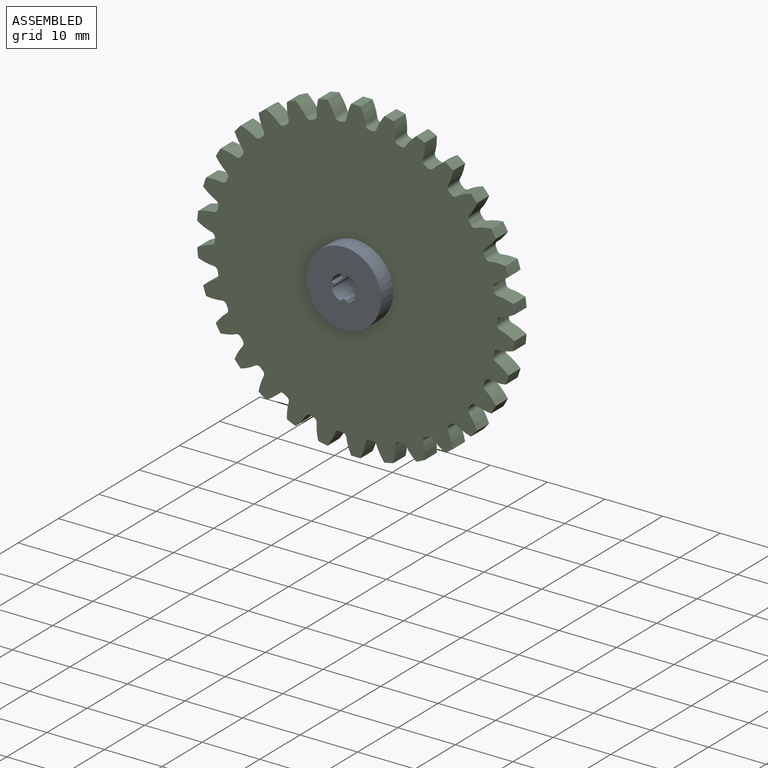
[diagram: assembled view]
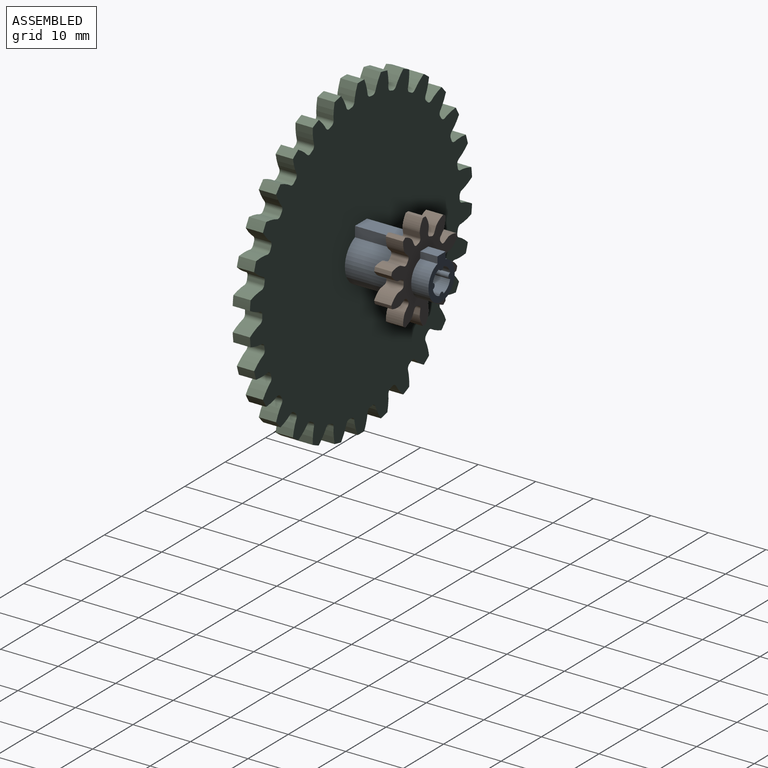
[diagram: assembled view, second angle]
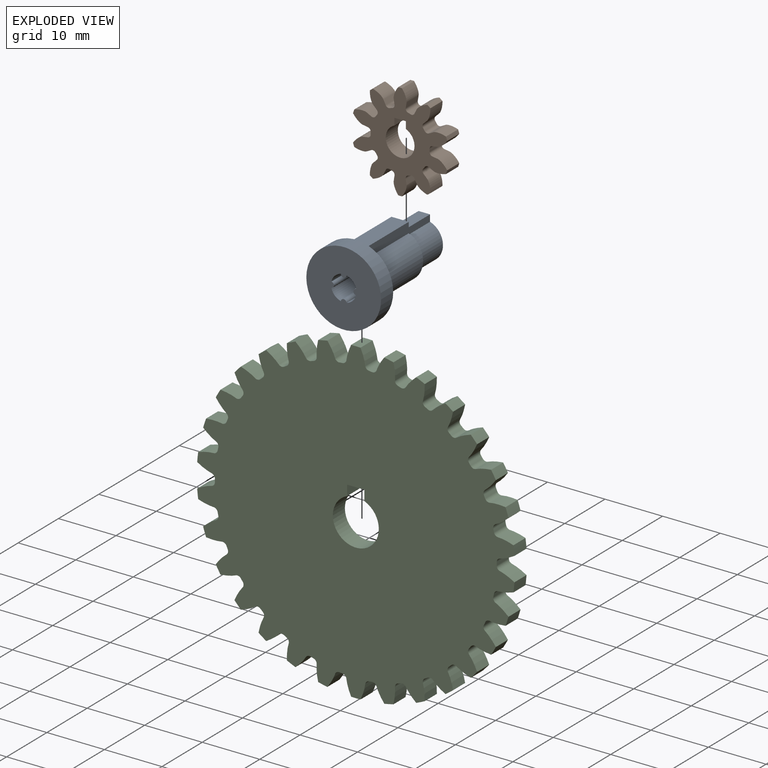
[diagram: exploded view]
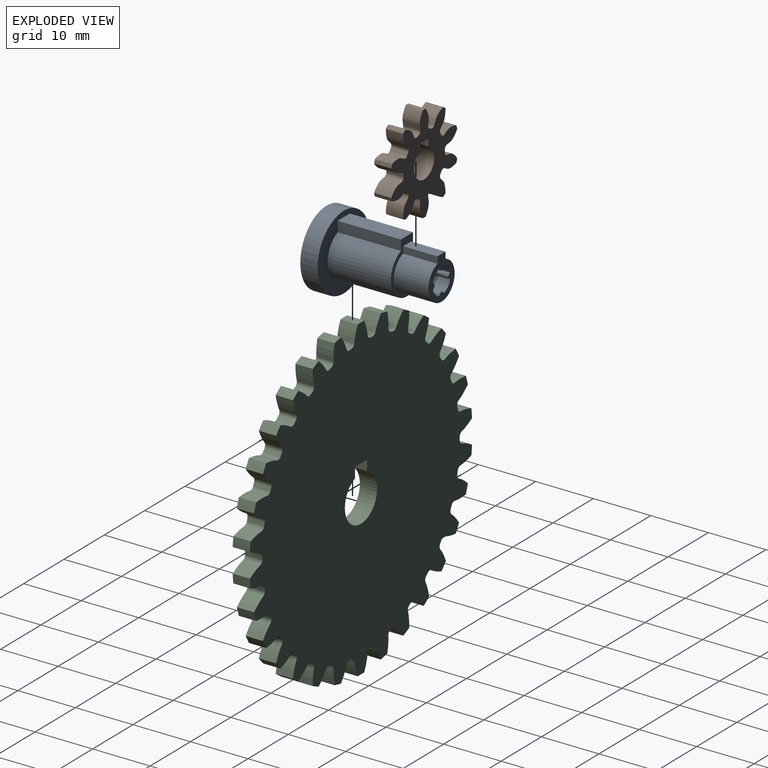
[diagram: exploded view, second angle]
ASSEMBLY  parts=3 mates=2
PART A: 21 faces, bbox 13x13x20 mm
  f0: plane 13x13mm, normal (0,0,1), area 119mm2, adj f8,f13,f14,f15,f16,f17,f18,f19
  f1: plane 7.5x6.5mm, normal (0,0,-1), area 21.6mm2, adj f9,f10,f11,f12,f13,f14,f15,f16
  f2: plane 9.5x8mm, normal (0,0,-1), area 19.8mm2, adj f3,f4,f5,f6,f9,f10,f11,f12
  f3: plane 11x1.79mm, normal (-1,0,0), area 19.7mm2, adj f2,f4,f6,f7
  f4: cylinder r=4mm len=11mm, axis (0,0,-1), area 242.6mm2, adj f2,f3,f5,f7
  f5: plane 11x1.79mm, normal (1,0,0), area 19.7mm2, adj f2,f4,f6,f7
  f6: plane 11x3mm, normal (0,1,0), area 33mm2, adj f2,f3,f5,f7
  f7: plane 13x13mm, normal (0,0,-1), area 77.7mm2, adj f3,f4,f5,f6,f8
  f8: cylinder r=6.5mm len=13mm, axis (0,0,-1), area 122.5mm2, adj f0,f7
  f9: cylinder r=3.25mm len=6.5mm, axis (0,0,1), area 110.3mm2, adj f1,f2,f10,f12
  f10: plane 6x1.16mm, normal (-1,0,0), area 6.9mm2, adj f1,f2,f9,f11
  f11: plane 6x2mm, normal (0,1,0), area 12mm2, adj f1,f2,f10,f12
  f12: plane 6x1.16mm, normal (1,0,0), area 6.9mm2, adj f1,f2,f9,f11
  f13: cylinder r=0.5mm len=20mm, axis (0,0,1), area 29.1mm2, adj f0,f1,f14,f20
  f14: cylinder r=2.2mm len=20mm, axis (0,0,1), area 49.1mm2, adj f0,f1,f13,f15
  f15: cylinder r=0.5mm len=20mm, axis (0,0,1), area 29.1mm2, adj f0,f1,f14,f16
  f16: cylinder r=2.2mm len=20mm, axis (0,0,1), area 49.1mm2, adj f0,f1,f15,f17
  f17: cylinder r=0.5mm len=20mm, axis (0,0,1), area 29.1mm2, adj f0,f1,f16,f18
  f18: cylinder r=2.2mm len=20mm, axis (0,0,1), area 49.1mm2, adj f0,f1,f17,f19
  f19: cylinder r=0.5mm len=20mm, axis (0,0,1), area 29.1mm2, adj f0,f1,f18,f20
  f20: cylinder r=2.2mm len=20mm, axis (0,0,1), area 49.1mm2, adj f0,f1,f13,f19
PART B: 66 faces, bbox 16.4x3x17.1 mm
  f0: cylinder r=8.5mm len=3mm, axis (0,1,0), area 2mm2, adj f9,f15,f56,f63
  f1: cylinder r=8.5mm len=3mm, axis (0,1,0), area 2mm2, adj f9,f15,f16,f58
  f2: cylinder r=8.5mm len=3mm, axis (0,1,0), area 2mm2, adj f9,f15,f46,f53
  f3: cylinder r=8.5mm len=3mm, axis (0,1,0), area 2mm2, adj f9,f15,f48,f61
  f4: cylinder r=8.5mm len=3mm, axis (0,1,0), area 2mm2, adj f9,f15,f36,f43
  f5: cylinder r=8.5mm len=3mm, axis (0,1,0), area 2mm2, adj f9,f15,f31,f38
  f6: cylinder r=8.5mm len=3mm, axis (0,1,0), area 2mm2, adj f9,f15,f26,f33
  f7: cylinder r=8.5mm len=3mm, axis (0,1,0), area 2mm2, adj f9,f15,f28,f51
  f8: cylinder r=8.5mm len=3mm, axis (0,1,0), area 2mm2, adj f9,f15,f23,f41
  f9: plane 17.05x16.43mm, normal (0,-1,0), area 124.3mm2, adj f0,f1,f2,f3,f4,f5,f6,f7
  f10: plane 3x1.21mm, normal (-1,0,0), area 3.6mm2, adj f9,f11,f13,f15
  f11: cylinder r=2.5mm len=5mm, axis (0,1,0), area 41mm2, adj f9,f10,f12,f15
  f12: plane 3x1.21mm, normal (1,0,0), area 3.6mm2, adj f9,f11,f13,f15
  f13: plane 3x2mm, normal (0,0,-1), area 6mm2, adj f9,f10,f12,f15
  f14: cylinder r=8.5mm len=3mm, axis (0,1,0), area 2mm2, adj f9,f15,f18,f21
  f15: plane 17.05x16.43mm, normal (0,1,0), area 124.3mm2, adj f0,f1,f2,f3,f4,f5,f6,f7
  f16: extruded ~3x2.58mm, area 9.3mm2, adj f1,f9,f15,f19
  f17: cylinder r=5.12mm len=3mm, axis (0,1,0), area 1.3mm2, adj f9,f15,f19,f20
  f18: extruded ~3x2.58mm, area 9.3mm2, adj f9,f14,f15,f20
  f19: cylinder r=0.56mm len=3mm, axis (0,1,0), area 2.5mm2, adj f9,f15,f16,f17
  f20: cylinder r=0.56mm len=3mm, axis (0,1,0), area 2.5mm2, adj f9,f15,f17,f18
  f21: extruded ~3x2.97mm, area 9.3mm2, adj f9,f14,f15,f24
  f22: cylinder r=5.12mm len=3mm, axis (0,1,0), area 1.3mm2, adj f9,f15,f24,f25
  f23: extruded ~3x2.73mm, area 9.3mm2, adj f8,f9,f15,f25
  f24: cylinder r=0.56mm len=3mm, axis (0,1,0), area 2.5mm2, adj f9,f15,f21,f22
  f25: cylinder r=0.56mm len=3mm, axis (0,1,0), area 2.5mm2, adj f9,f15,f22,f23
  f26: extruded ~3x2.58mm, area 9.3mm2, adj f6,f9,f15,f29
  f27: cylinder r=5.12mm len=3mm, axis (0,1,0), area 1.3mm2, adj f9,f15,f29,f30
  f28: extruded ~3x2.58mm, area 9.3mm2, adj f7,f9,f15,f30
  f29: cylinder r=0.56mm len=3mm, axis (0,1,0), area 2.5mm2, adj f9,f15,f26,f27
  f30: cylinder r=0.56mm len=3mm, axis (0,1,0), area 2.5mm2, adj f9,f15,f27,f28
  f31: extruded ~3x2.73mm, area 9.3mm2, adj f5,f9,f15,f34
  f32: cylinder r=5.12mm len=3mm, axis (0,1,0), area 1.3mm2, adj f9,f15,f34,f35
  f33: extruded ~3x2.97mm, area 9.3mm2, adj f6,f9,f15,f35
  f34: cylinder r=0.56mm len=3mm, axis (0,1,0), area 2.5mm2, adj f9,f15,f31,f32
  f35: cylinder r=0.56mm len=3mm, axis (0,1,0), area 2.5mm2, adj f9,f15,f32,f33
  f36: extruded ~3x2.92mm, area 9.3mm2, adj f4,f9,f15,f39
  f37: cylinder r=5.12mm len=3mm, axis (0,1,0), area 1.3mm2, adj f9,f15,f39,f40
  f38: extruded ~3x2.23mm, area 9.3mm2, adj f5,f9,f15,f40
  f39: cylinder r=0.56mm len=3mm, axis (0,1,0), area 2.5mm2, adj f9,f15,f36,f37
  f40: cylinder r=0.56mm len=3mm, axis (0,1,0), area 2.5mm2, adj f9,f15,f37,f38
  f41: extruded ~3x2.23mm, area 9.3mm2, adj f8,f9,f15,f44
  f42: cylinder r=5.12mm len=3mm, axis (0,1,0), area 1.3mm2, adj f9,f15,f44,f45
  f43: extruded ~3x2.92mm, area 9.3mm2, adj f4,f9,f15,f45
  f44: cylinder r=0.56mm len=3mm, axis (0,1,0), area 2.5mm2, adj f9,f15,f41,f42
  f45: cylinder r=0.56mm len=3mm, axis (0,1,0), area 2.5mm2, adj f9,f15,f42,f43
  f46: extruded ~3x2.23mm, area 9.3mm2, adj f2,f9,f15,f49
  f47: cylinder r=5.12mm len=3mm, axis (0,1,0), area 1.3mm2, adj f9,f15,f49,f50
  f48: extruded ~3x2.92mm, area 9.3mm2, adj f3,f9,f15,f50
  f49: cylinder r=0.56mm len=3mm, axis (0,1,0), area 2.5mm2, adj f9,f15,f46,f47
  f50: cylinder r=0.56mm len=3mm, axis (0,1,0), area 2.5mm2, adj f9,f15,f47,f48
  f51: extruded ~3x2.97mm, area 9.3mm2, adj f7,f9,f15,f54
  f52: cylinder r=5.12mm len=3mm, axis (0,1,0), area 1.3mm2, adj f9,f15,f54,f55
  f53: extruded ~3x2.73mm, area 9.3mm2, adj f2,f9,f15,f55
  f54: cylinder r=0.56mm len=3mm, axis (0,1,0), area 2.5mm2, adj f9,f15,f51,f52
  f55: cylinder r=0.56mm len=3mm, axis (0,1,0), area 2.5mm2, adj f9,f15,f52,f53
  f56: extruded ~3x2.73mm, area 9.3mm2, adj f0,f9,f15,f59
  f57: cylinder r=5.12mm len=3mm, axis (0,1,0), area 1.3mm2, adj f9,f15,f59,f60
  f58: extruded ~3x2.97mm, area 9.3mm2, adj f1,f9,f15,f60
  f59: cylinder r=0.56mm len=3mm, axis (0,1,0), area 2.5mm2, adj f9,f15,f56,f57
  f60: cylinder r=0.56mm len=3mm, axis (0,1,0), area 2.5mm2, adj f9,f15,f57,f58
  f61: extruded ~3x2.92mm, area 9.3mm2, adj f3,f9,f15,f64
  f62: cylinder r=5.12mm len=3mm, axis (0,1,0), area 1.3mm2, adj f9,f15,f64,f65
  f63: extruded ~3x2.23mm, area 9.3mm2, adj f0,f9,f15,f65
  f64: cylinder r=0.56mm len=3mm, axis (0,1,0), area 2.5mm2, adj f9,f15,f61,f62
  f65: cylinder r=0.56mm len=3mm, axis (0,1,0), area 2.5mm2, adj f9,f15,f62,f63
PART C: 186 faces, bbox 55.1x3x55.3 mm
  f0: cylinder r=27.65mm len=3mm, axis (0,1,0), area 4.9mm2, adj f29,f35,f36,f183
  f1: cylinder r=27.65mm len=3mm, axis (0,1,0), area 4.9mm2, adj f29,f35,f178,f181
  f2: cylinder r=27.65mm len=3mm, axis (0,1,0), area 4.9mm2, adj f29,f35,f166,f173
  f3: cylinder r=27.65mm len=3mm, axis (0,1,0), area 4.9mm2, adj f29,f35,f168,f176
  f4: cylinder r=27.65mm len=3mm, axis (0,1,0), area 4.9mm2, adj f29,f35,f163,f171
  f5: cylinder r=27.65mm len=3mm, axis (0,1,0), area 4.9mm2, adj f29,f35,f158,f161
  f6: cylinder r=27.65mm len=3mm, axis (0,1,0), area 4.9mm2, adj f29,f35,f153,f156
  f7: cylinder r=27.65mm len=3mm, axis (0,1,0), area 4.9mm2, adj f29,f35,f148,f151
  f8: cylinder r=27.65mm len=3mm, axis (0,1,0), area 4.9mm2, adj f29,f35,f143,f146
  f9: cylinder r=27.65mm len=3mm, axis (0,1,0), area 4.9mm2, adj f29,f35,f138,f141
  f10: cylinder r=27.65mm len=3mm, axis (0,1,0), area 4.9mm2, adj f29,f35,f126,f133
  f11: cylinder r=27.65mm len=3mm, axis (0,1,0), area 4.9mm2, adj f29,f35,f128,f136
  f12: cylinder r=27.65mm len=3mm, axis (0,1,0), area 4.9mm2, adj f29,f35,f123,f131
  f13: cylinder r=27.65mm len=3mm, axis (0,1,0), area 4.9mm2, adj f29,f35,f118,f121
  f14: cylinder r=27.65mm len=3mm, axis (0,1,0), area 4.9mm2, adj f29,f35,f113,f116
  f15: cylinder r=27.65mm len=3mm, axis (0,1,0), area 4.9mm2, adj f29,f35,f108,f111
  f16: cylinder r=27.65mm len=3mm, axis (0,1,0), area 4.9mm2, adj f29,f35,f96,f103
  f17: cylinder r=27.65mm len=3mm, axis (0,1,0), area 4.9mm2, adj f29,f35,f91,f98
  f18: cylinder r=27.65mm len=3mm, axis (0,1,0), area 4.9mm2, adj f29,f35,f86,f93
  f19: cylinder r=27.65mm len=3mm, axis (0,1,0), area 4.9mm2, adj f29,f35,f88,f106
  f20: cylinder r=27.65mm len=3mm, axis (0,1,0), area 4.9mm2, adj f29,f35,f83,f101
  f21: cylinder r=27.65mm len=3mm, axis (0,1,0), area 4.9mm2, adj f29,f35,f78,f81
  f22: cylinder r=27.65mm len=3mm, axis (0,1,0), area 4.9mm2, adj f29,f35,f73,f76
  f23: cylinder r=27.65mm len=3mm, axis (0,1,0), area 4.9mm2, adj f29,f35,f68,f71
  f24: cylinder r=27.65mm len=3mm, axis (0,1,0), area 4.9mm2, adj f29,f35,f56,f63
  f25: cylinder r=27.65mm len=3mm, axis (0,1,0), area 4.9mm2, adj f29,f35,f51,f58
  f26: cylinder r=27.65mm len=3mm, axis (0,1,0), area 4.9mm2, adj f29,f35,f46,f53
  f27: cylinder r=27.65mm len=3mm, axis (0,1,0), area 4.9mm2, adj f29,f35,f48,f66
  f28: cylinder r=27.65mm len=3mm, axis (0,1,0), area 4.9mm2, adj f29,f35,f43,f61
  f29: plane 55.3x55.15mm, normal (0,-1,0), area 2093.7mm2, adj f0,f1,f2,f3,f4,f5,f6,f7
  f30: plane 3x1.79mm, normal (-1,0,0), area 5.4mm2, adj f29,f31,f33,f35
  f31: cylinder r=4mm len=8mm, axis (0,1,0), area 66.2mm2, adj f29,f30,f32,f35
  f32: plane 3x1.79mm, normal (1,0,0), area 5.4mm2, adj f29,f31,f33,f35
  f33: plane 3x3mm, normal (0,0,-1), area 9mm2, adj f29,f30,f32,f35
  f34: cylinder r=27.65mm len=3mm, axis (0,1,0), area 4.9mm2, adj f29,f35,f38,f41
  f35: plane 55.3x55.15mm, normal (0,1,0), area 2093.7mm2, adj f0,f1,f2,f3,f4,f5,f6,f7
  f36: extruded ~3x2.51mm, area 8.2mm2, adj f0,f29,f35,f39
  f37: cylinder r=24.5mm len=3mm, axis (0,1,0), area 1.6mm2, adj f29,f35,f39,f40
  f38: extruded ~3x2.51mm, area 8.2mm2, adj f29,f34,f35,f40
  f39: cylinder r=0.73mm len=3mm, axis (0,1,0), area 3mm2, adj f29,f35,f36,f37
  f40: cylinder r=0.73mm len=3mm, axis (0,1,0), area 3mm2, adj f29,f35,f37,f38
  f41: extruded ~3x2.68mm, area 8.2mm2, adj f29,f34,f35,f44
  f42: cylinder r=24.5mm len=3mm, axis (0,1,0), area 1.6mm2, adj f29,f35,f44,f45
  f43: extruded ~3x2.23mm, area 8.2mm2, adj f28,f29,f35,f45
  f44: cylinder r=0.73mm len=3mm, axis (0,1,0), area 3mm2, adj f29,f35,f41,f42
  f45: cylinder r=0.73mm len=3mm, axis (0,1,0), area 3mm2, adj f29,f35,f42,f43
  f46: extruded ~3x2.19mm, area 8.2mm2, adj f26,f29,f35,f49
  f47: cylinder r=24.5mm len=3mm, axis (0,1,0), area 1.6mm2, adj f29,f35,f49,f50
  f48: extruded ~3x2.71mm, area 8.2mm2, adj f27,f29,f35,f50
  f49: cylinder r=0.73mm len=3mm, axis (0,1,0), area 3mm2, adj f29,f35,f46,f47
  f50: cylinder r=0.73mm len=3mm, axis (0,1,0), area 3mm2, adj f29,f35,f47,f48
  f51: extruded ~3x2.48mm, area 8.2mm2, adj f25,f29,f35,f54
  f52: cylinder r=24.5mm len=3mm, axis (0,1,0), area 1.6mm2, adj f29,f35,f54,f55
  f53: extruded ~3x2.59mm, area 8.2mm2, adj f26,f29,f35,f55
  f54: cylinder r=0.73mm len=3mm, axis (0,1,0), area 3mm2, adj f29,f35,f51,f52
  f55: cylinder r=0.73mm len=3mm, axis (0,1,0), area 3mm2, adj f29,f35,f52,f53
  f56: extruded ~3x2.67mm, area 8.2mm2, adj f24,f29,f35,f59
  f57: cylinder r=24.5mm len=3mm, axis (0,1,0), area 1.6mm2, adj f29,f35,f59,f60
  f58: extruded ~3x2.35mm, area 8.2mm2, adj f25,f29,f35,f60
  f59: cylinder r=0.73mm len=3mm, axis (0,1,0), area 3mm2, adj f29,f35,f56,f57
  f60: cylinder r=0.73mm len=3mm, axis (0,1,0), area 3mm2, adj f29,f35,f57,f58
  f61: extruded ~3x2.73mm, area 8.2mm2, adj f28,f29,f35,f64
  f62: cylinder r=24.5mm len=3mm, axis (0,1,0), area 1.6mm2, adj f29,f35,f64,f65
  f63: extruded ~3x2.01mm, area 8.2mm2, adj f24,f29,f35,f65
  f64: cylinder r=0.73mm len=3mm, axis (0,1,0), area 3mm2, adj f29,f35,f61,f62
  f65: cylinder r=0.73mm len=3mm, axis (0,1,0), area 3mm2, adj f29,f35,f62,f63
  f66: extruded ~3x2.05mm, area 8.2mm2, adj f27,f29,f35,f69
  f67: cylinder r=24.5mm len=3mm, axis (0,1,0), area 1.6mm2, adj f29,f35,f69,f70
  f68: extruded ~3x2.72mm, area 8.2mm2, adj f23,f29,f35,f70
  f69: cylinder r=0.73mm len=3mm, axis (0,1,0), area 3mm2, adj f29,f35,f66,f67
  f70: cylinder r=0.73mm len=3mm, axis (0,1,0), area 3mm2, adj f29,f35,f67,f68
  f71: extruded ~3x2.38mm, area 8.2mm2, adj f23,f29,f35,f74
  f72: cylinder r=24.5mm len=3mm, axis (0,1,0), area 1.6mm2, adj f29,f35,f74,f75
  f73: extruded ~3x2.61mm, area 8.2mm2, adj f22,f29,f35,f75
  f74: cylinder r=0.73mm len=3mm, axis (0,1,0), area 3mm2, adj f29,f35,f71,f72
  f75: cylinder r=0.73mm len=3mm, axis (0,1,0), area 3mm2, adj f29,f35,f72,f73
  f76: extruded ~3x2.61mm, area 8.2mm2, adj f22,f29,f35,f79
  f77: cylinder r=24.5mm len=3mm, axis (0,1,0), area 1.6mm2, adj f29,f35,f79,f80
  f78: extruded ~3x2.38mm, area 8.2mm2, adj f21,f29,f35,f80
  f79: cylinder r=0.73mm len=3mm, axis (0,1,0), area 3mm2, adj f29,f35,f76,f77
  f80: cylinder r=0.73mm len=3mm, axis (0,1,0), area 3mm2, adj f29,f35,f77,f78
  f81: extruded ~3x2.72mm, area 8.2mm2, adj f21,f29,f35,f84
  f82: cylinder r=24.5mm len=3mm, axis (0,1,0), area 1.6mm2, adj f29,f35,f84,f85
  f83: extruded ~3x2.05mm, area 8.2mm2, adj f20,f29,f35,f85
  f84: cylinder r=0.73mm len=3mm, axis (0,1,0), area 3mm2, adj f29,f35,f81,f82
  f85: cylinder r=0.73mm len=3mm, axis (0,1,0), area 3mm2, adj f29,f35,f82,f83
  f86: extruded ~3x2.01mm, area 8.2mm2, adj f18,f29,f35,f89
  f87: cylinder r=24.5mm len=3mm, axis (0,1,0), area 1.6mm2, adj f29,f35,f89,f90
  f88: extruded ~3x2.73mm, area 8.2mm2, adj f19,f29,f35,f90
  f89: cylinder r=0.73mm len=3mm, axis (0,1,0), area 3mm2, adj f29,f35,f86,f87
  f90: cylinder r=0.73mm len=3mm, axis (0,1,0), area 3mm2, adj f29,f35,f87,f88
  f91: extruded ~3x2.35mm, area 8.2mm2, adj f17,f29,f35,f94
  f92: cylinder r=24.5mm len=3mm, axis (0,1,0), area 1.6mm2, adj f29,f35,f94,f95
  f93: extruded ~3x2.67mm, area 8.2mm2, adj f18,f29,f35,f95
  f94: cylinder r=0.73mm len=3mm, axis (0,1,0), area 3mm2, adj f29,f35,f91,f92
  f95: cylinder r=0.73mm len=3mm, axis (0,1,0), area 3mm2, adj f29,f35,f92,f93
  f96: extruded ~3x2.59mm, area 8.2mm2, adj f16,f29,f35,f99
  f97: cylinder r=24.5mm len=3mm, axis (0,1,0), area 1.6mm2, adj f29,f35,f99,f100
  f98: extruded ~3x2.48mm, area 8.2mm2, adj f17,f29,f35,f100
  f99: cylinder r=0.73mm len=3mm, axis (0,1,0), area 3mm2, adj f29,f35,f96,f97
  f100: cylinder r=0.73mm len=3mm, axis (0,1,0), area 3mm2, adj f29,f35,f97,f98
  f101: extruded ~3x2.71mm, area 8.2mm2, adj f20,f29,f35,f104
  f102: cylinder r=24.5mm len=3mm, axis (0,1,0), area 1.6mm2, adj f29,f35,f104,f105
  f103: extruded ~3x2.19mm, area 8.2mm2, adj f16,f29,f35,f105
  f104: cylinder r=0.73mm len=3mm, axis (0,1,0), area 3mm2, adj f29,f35,f101,f102
  f105: cylinder r=0.73mm len=3mm, axis (0,1,0), area 3mm2, adj f29,f35,f102,f103
  f106: extruded ~3x2.23mm, area 8.2mm2, adj f19,f29,f35,f109
  f107: cylinder r=24.5mm len=3mm, axis (0,1,0), area 1.6mm2, adj f29,f35,f109,f110
  f108: extruded ~3x2.68mm, area 8.2mm2, adj f15,f29,f35,f110
  f109: cylinder r=0.73mm len=3mm, axis (0,1,0), area 3mm2, adj f29,f35,f106,f107
  f110: cylinder r=0.73mm len=3mm, axis (0,1,0), area 3mm2, adj f29,f35,f107,f108
  f111: extruded ~3x2.51mm, area 8.2mm2, adj f15,f29,f35,f114
  f112: cylinder r=24.5mm len=3mm, axis (0,1,0), area 1.6mm2, adj f29,f35,f114,f115
  f113: extruded ~3x2.51mm, area 8.2mm2, adj f14,f29,f35,f115
  f114: cylinder r=0.73mm len=3mm, axis (0,1,0), area 3mm2, adj f29,f35,f111,f112
  f115: cylinder r=0.73mm len=3mm, axis (0,1,0), area 3mm2, adj f29,f35,f112,f113
  f116: extruded ~3x2.68mm, area 8.2mm2, adj f14,f29,f35,f119
  f117: cylinder r=24.5mm len=3mm, axis (0,1,0), area 1.6mm2, adj f29,f35,f119,f120
  f118: extruded ~3x2.23mm, area 8.2mm2, adj f13,f29,f35,f120
  f119: cylinder r=0.73mm len=3mm, axis (0,1,0), area 3mm2, adj f29,f35,f116,f117
  f120: cylinder r=0.73mm len=3mm, axis (0,1,0), area 3mm2, adj f29,f35,f117,f118
  f121: extruded ~3x2.73mm, area 8.2mm2, adj f13,f29,f35,f124
  f122: cylinder r=24.5mm len=3mm, axis (0,1,0), area 1.6mm2, adj f29,f35,f124,f125
  f123: extruded ~3x2.01mm, area 8.2mm2, adj f12,f29,f35,f125
  f124: cylinder r=0.73mm len=3mm, axis (0,1,0), area 3mm2, adj f29,f35,f121,f122
  f125: cylinder r=0.73mm len=3mm, axis (0,1,0), area 3mm2, adj f29,f35,f122,f123
  f126: extruded ~3x2.48mm, area 8.2mm2, adj f10,f29,f35,f129
  f127: cylinder r=24.5mm len=3mm, axis (0,1,0), area 1.6mm2, adj f29,f35,f129,f130
  f128: extruded ~3x2.59mm, area 8.2mm2, adj f11,f29,f35,f130
  f129: cylinder r=0.73mm len=3mm, axis (0,1,0), area 3mm2, adj f29,f35,f126,f127
  f130: cylinder r=0.73mm len=3mm, axis (0,1,0), area 3mm2, adj f29,f35,f127,f128
  f131: extruded ~3x2.67mm, area 8.2mm2, adj f12,f29,f35,f134
  f132: cylinder r=24.5mm len=3mm, axis (0,1,0), area 1.6mm2, adj f29,f35,f134,f135
  f133: extruded ~3x2.35mm, area 8.2mm2, adj f10,f29,f35,f135
  f134: cylinder r=0.73mm len=3mm, axis (0,1,0), area 3mm2, adj f29,f35,f131,f132
  f135: cylinder r=0.73mm len=3mm, axis (0,1,0), area 3mm2, adj f29,f35,f132,f133
  f136: extruded ~3x2.19mm, area 8.2mm2, adj f11,f29,f35,f139
  f137: cylinder r=24.5mm len=3mm, axis (0,1,0), area 1.6mm2, adj f29,f35,f139,f140
  f138: extruded ~3x2.71mm, area 8.2mm2, adj f9,f29,f35,f140
  f139: cylinder r=0.73mm len=3mm, axis (0,1,0), area 3mm2, adj f29,f35,f136,f137
  f140: cylinder r=0.73mm len=3mm, axis (0,1,0), area 3mm2, adj f29,f35,f137,f138
  f141: extruded ~3x2.05mm, area 8.2mm2, adj f9,f29,f35,f144
  f142: cylinder r=24.5mm len=3mm, axis (0,1,0), area 1.6mm2, adj f29,f35,f144,f145
  f143: extruded ~3x2.72mm, area 8.2mm2, adj f8,f29,f35,f145
  f144: cylinder r=0.73mm len=3mm, axis (0,1,0), area 3mm2, adj f29,f35,f141,f142
  f145: cylinder r=0.73mm len=3mm, axis (0,1,0), area 3mm2, adj f29,f35,f142,f143
  f146: extruded ~3x2.38mm, area 8.2mm2, adj f8,f29,f35,f149
  f147: cylinder r=24.5mm len=3mm, axis (0,1,0), area 1.6mm2, adj f29,f35,f149,f150
  f148: extruded ~3x2.61mm, area 8.2mm2, adj f7,f29,f35,f150
  f149: cylinder r=0.73mm len=3mm, axis (0,1,0), area 3mm2, adj f29,f35,f146,f147
  f150: cylinder r=0.73mm len=3mm, axis (0,1,0), area 3mm2, adj f29,f35,f147,f148
  f151: extruded ~3x2.61mm, area 8.2mm2, adj f7,f29,f35,f154
  f152: cylinder r=24.5mm len=3mm, axis (0,1,0), area 1.6mm2, adj f29,f35,f154,f155
  f153: extruded ~3x2.38mm, area 8.2mm2, adj f6,f29,f35,f155
  f154: cylinder r=0.73mm len=3mm, axis (0,1,0), area 3mm2, adj f29,f35,f151,f152
  f155: cylinder r=0.73mm len=3mm, axis (0,1,0), area 3mm2, adj f29,f35,f152,f153
  f156: extruded ~3x2.72mm, area 8.2mm2, adj f6,f29,f35,f159
  f157: cylinder r=24.5mm len=3mm, axis (0,1,0), area 1.6mm2, adj f29,f35,f159,f160
  f158: extruded ~3x2.05mm, area 8.2mm2, adj f5,f29,f35,f160
  f159: cylinder r=0.73mm len=3mm, axis (0,1,0), area 3mm2, adj f29,f35,f156,f157
  f160: cylinder r=0.73mm len=3mm, axis (0,1,0), area 3mm2, adj f29,f35,f157,f158
  f161: extruded ~3x2.71mm, area 8.2mm2, adj f5,f29,f35,f164
  f162: cylinder r=24.5mm len=3mm, axis (0,1,0), area 1.6mm2, adj f29,f35,f164,f165
  f163: extruded ~3x2.19mm, area 8.2mm2, adj f4,f29,f35,f165
  f164: cylinder r=0.73mm len=3mm, axis (0,1,0), area 3mm2, adj f29,f35,f161,f162
  f165: cylinder r=0.73mm len=3mm, axis (0,1,0), area 3mm2, adj f29,f35,f162,f163
  f166: extruded ~3x2.35mm, area 8.2mm2, adj f2,f29,f35,f169
  f167: cylinder r=24.5mm len=3mm, axis (0,1,0), area 1.6mm2, adj f29,f35,f169,f170
  f168: extruded ~3x2.67mm, area 8.2mm2, adj f3,f29,f35,f170
  f169: cylinder r=0.73mm len=3mm, axis (0,1,0), area 3mm2, adj f29,f35,f166,f167
  f170: cylinder r=0.73mm len=3mm, axis (0,1,0), area 3mm2, adj f29,f35,f167,f168
  f171: extruded ~3x2.59mm, area 8.2mm2, adj f4,f29,f35,f174
  f172: cylinder r=24.5mm len=3mm, axis (0,1,0), area 1.6mm2, adj f29,f35,f174,f175
  f173: extruded ~3x2.48mm, area 8.2mm2, adj f2,f29,f35,f175
  f174: cylinder r=0.73mm len=3mm, axis (0,1,0), area 3mm2, adj f29,f35,f171,f172
  f175: cylinder r=0.73mm len=3mm, axis (0,1,0), area 3mm2, adj f29,f35,f172,f173
  f176: extruded ~3x2.01mm, area 8.2mm2, adj f3,f29,f35,f179
  f177: cylinder r=24.5mm len=3mm, axis (0,1,0), area 1.6mm2, adj f29,f35,f179,f180
  f178: extruded ~3x2.73mm, area 8.2mm2, adj f1,f29,f35,f180
  f179: cylinder r=0.73mm len=3mm, axis (0,1,0), area 3mm2, adj f29,f35,f176,f177
  f180: cylinder r=0.73mm len=3mm, axis (0,1,0), area 3mm2, adj f29,f35,f177,f178
  f181: extruded ~3x2.23mm, area 8.2mm2, adj f1,f29,f35,f184
  f182: cylinder r=24.5mm len=3mm, axis (0,1,0), area 1.6mm2, adj f29,f35,f184,f185
  f183: extruded ~3x2.68mm, area 8.2mm2, adj f0,f29,f35,f185
  f184: cylinder r=0.73mm len=3mm, axis (0,1,0), area 3mm2, adj f29,f35,f181,f182
  f185: cylinder r=0.73mm len=3mm, axis (0,1,0), area 3mm2, adj f29,f35,f182,f183
PLACE A rot(axis=(1,0,0),90deg) t=(-36.14,-0.66,-7.48)mm
PLACE B t=(-36.14,2.34,-6.73)mm
PLACE C t=(-36.14,-8.66,-7.48)mm
MATE fastened A.f11 <-> B.f13  axis (0,0,1) through (-35.14,-0.66,-3.23)mm
MATE fastened A.f6 <-> C.f33  axis (0,0,1) through (-34.64,-11.66,-1.98)mm
